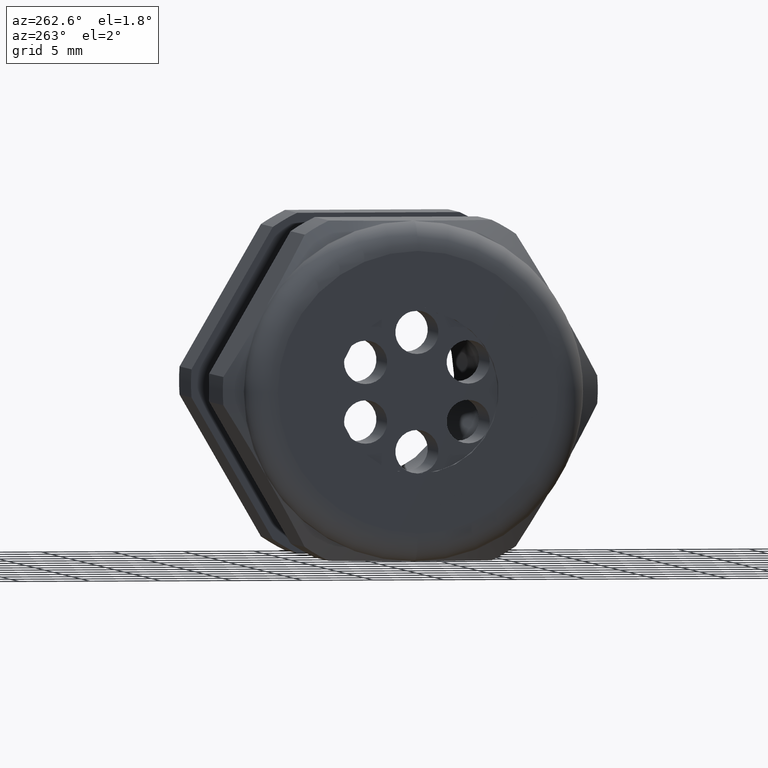
[diagram: clean part render]
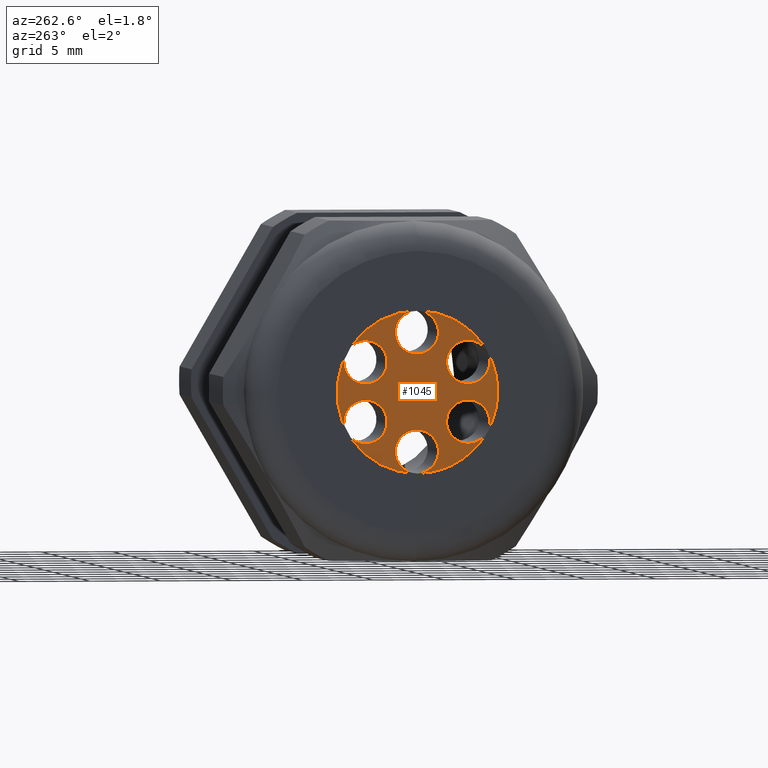
[diagram: same view with one face highlighted and labeled with its STEP entity id]
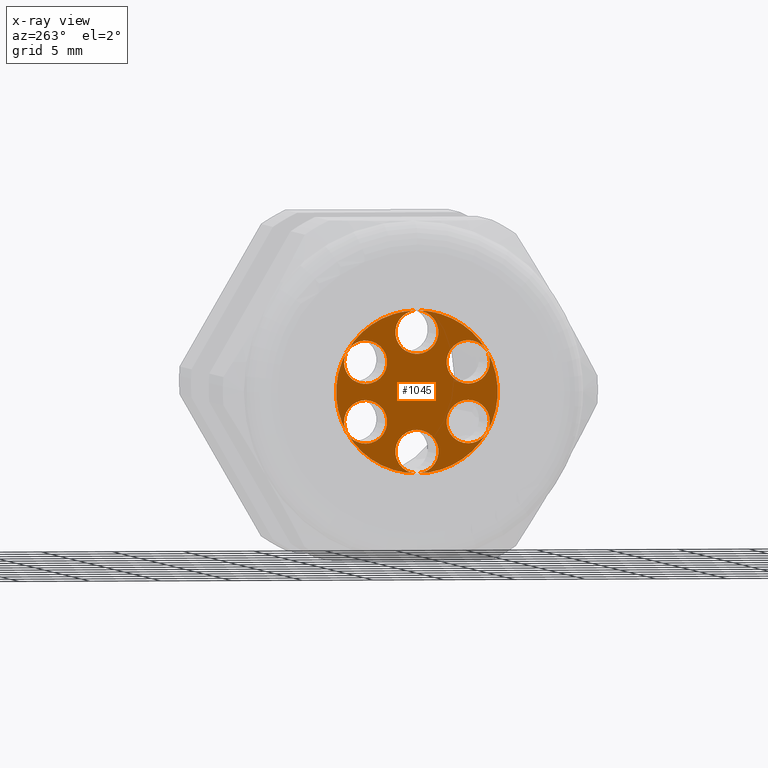
[diagram: x-ray of the same camera — body ghosted, the highlighted face saturated]
A machine part, auxiliary view. The second image highlights one B-rep face of the part: STEP entity #1045.
The next image is the same camera in x-ray: the body ghosted, the highlighted face saturated — about 0% of this face is hidden behind the body in this view.
In plain terms, the highlighted planar face has unit normal (-1, 0, 0).
Its self-contained STEP definition (entity closure, byte-faithful):
#876 = VERTEX_POINT ( 'NONE', #2725 ) ;
#880 = VERTEX_POINT ( 'NONE', #2716 ) ;
#886 = EDGE_CURVE ( 'NONE', #876, #880, #2768, .T. ) ;
#918 = EDGE_CURVE ( 'NONE', #919, #939, #2771, .T. ) ;
#919 = VERTEX_POINT ( 'NONE', #2831 ) ;
#924 = VERTEX_POINT ( 'NONE', #2818 ) ;
#933 = EDGE_CURVE ( 'NONE', #924, #934, #2807, .T. ) ;
#934 = VERTEX_POINT ( 'NONE', #2866 ) ;
#939 = VERTEX_POINT ( 'NONE', #2855 ) ;
#944 = EDGE_CURVE ( 'NONE', #953, #946, #2842, .T. ) ;
#946 = VERTEX_POINT ( 'NONE', #2895 ) ;
#953 = VERTEX_POINT ( 'NONE', #2884 ) ;
#962 = VERTEX_POINT ( 'NONE', #2869 ) ;
#966 = VERTEX_POINT ( 'NONE', #2927 ) ;
#967 = VERTEX_POINT ( 'NONE', #2926 ) ;
#969 = EDGE_CURVE ( 'NONE', #966, #967, #2924, .T. ) ;
#980 = EDGE_CURVE ( 'NONE', #962, #981, #2901, .T. ) ;
#981 = VERTEX_POINT ( 'NONE', #2959 ) ;
#984 = VERTEX_POINT ( 'NONE', #2954 ) ;
#985 = EDGE_CURVE ( 'NONE', #984, #998, #2953, .T. ) ;
#998 = VERTEX_POINT ( 'NONE', #2989 ) ;
#1039 = EDGE_LOOP ( 'NONE', ( #1042, #1115 ) ) ;
#1040 = ORIENTED_EDGE ( 'NONE', *, *, #985, .F. ) ;
#1041 = EDGE_LOOP ( 'NONE', ( #1112, #1040 ) ) ;
#1042 = ORIENTED_EDGE ( 'NONE', *, *, #1114, .F. ) ;
#1043 = ORIENTED_EDGE ( 'NONE', *, *, #1044, .F. ) ;
#1044 = EDGE_CURVE ( 'NONE', #880, #876, #3006, .T. ) ;
#1045 = ADVANCED_FACE ( 'NONE', ( #3001, #3000, #2999, #2998, #2997, #2996, #2995 ), #3058, .T. ) ;
#1046 = EDGE_CURVE ( 'NONE', #998, #984, #3053, .T. ) ;
#1047 = EDGE_CURVE ( 'NONE', #967, #966, #3048, .T. ) ;
#1048 = ORIENTED_EDGE ( 'NONE', *, *, #969, .F. ) ;
#1049 = EDGE_LOOP ( 'NONE', ( #1043, #1184 ) ) ;
#1074 = EDGE_CURVE ( 'NONE', #939, #919, #3536, .T. ) ;
#1112 = ORIENTED_EDGE ( 'NONE', *, *, #1046, .F. ) ;
#1113 = EDGE_LOOP ( 'NONE', ( #1116, #1048 ) ) ;
#1114 = EDGE_CURVE ( 'NONE', #981, #962, #3599, .T. ) ;
#1115 = ORIENTED_EDGE ( 'NONE', *, *, #980, .F. ) ;
#1116 = ORIENTED_EDGE ( 'NONE', *, *, #1047, .F. ) ;
#1117 = ORIENTED_EDGE ( 'NONE', *, *, #1118, .F. ) ;
#1118 = EDGE_CURVE ( 'NONE', #934, #924, #3594, .T. ) ;
#1119 = ORIENTED_EDGE ( 'NONE', *, *, #933, .F. ) ;
#1120 = EDGE_LOOP ( 'NONE', ( #1121, #1122 ) ) ;
#1121 = ORIENTED_EDGE ( 'NONE', *, *, #1074, .T. ) ;
#1122 = ORIENTED_EDGE ( 'NONE', *, *, #918, .T. ) ;
#1124 = EDGE_CURVE ( 'NONE', #946, #953, #3582, .T. ) ;
#1125 = ORIENTED_EDGE ( 'NONE', *, *, #944, .F. ) ;
#1184 = ORIENTED_EDGE ( 'NONE', *, *, #886, .F. ) ;
#1185 = ORIENTED_EDGE ( 'NONE', *, *, #1124, .F. ) ;
#1186 = EDGE_LOOP ( 'NONE', ( #1117, #1119 ) ) ;
#1187 = EDGE_LOOP ( 'NONE', ( #1185, #1125 ) ) ;
#2709 = CARTESIAN_POINT ( 'NONE',  ( -1.389999999999999900, -0.1426863455275237400, 0.08238000000000067500 ) ) ;
#2716 = CARTESIAN_POINT ( 'NONE',  ( -1.389999999999999900, -0.1426863455275237400, 0.1423800000000007000 ) ) ;
#2725 = CARTESIAN_POINT ( 'NONE',  ( -1.389999999999999900, -0.1426863455275237400, 0.02238000000000066300 ) ) ;
#2765 = DIRECTION ( 'NONE',  ( 0.0000000000000000000, 0.8660254037844362700, -0.5000000000000041100 ) ) ;
#2766 = DIRECTION ( 'NONE',  ( -1.000000000000000000, 0.0000000000000000000, 0.0000000000000000000 ) ) ;
#2767 = AXIS2_PLACEMENT_3D ( 'NONE', #2709, #2766, #2765 ) ;
#2768 = CIRCLE ( 'NONE', #2767, 0.06000000000000002600 ) ;
#2771 = CIRCLE ( 'NONE', #2835, 0.2249999999999999800 ) ;
#2803 = DIRECTION ( 'NONE',  ( 0.0000000000000000000, 0.0000000000000000000, 1.000000000000000000 ) ) ;
#2804 = DIRECTION ( 'NONE',  ( -1.000000000000000000, 0.0000000000000000000, 0.0000000000000000000 ) ) ;
#2805 = CARTESIAN_POINT ( 'NONE',  ( -1.389999999999999900, 0.0000000000000000000, -0.1647599999999999900 ) ) ;
#2806 = AXIS2_PLACEMENT_3D ( 'NONE', #2805, #2804, #2803 ) ;
#2807 = CIRCLE ( 'NONE', #2806, 0.06000000000000001200 ) ;
#2818 = CARTESIAN_POINT ( 'NONE',  ( -1.389999999999999900, 7.347880794884123000E-018, -0.2247600000000000400 ) ) ;
#2831 = CARTESIAN_POINT ( 'NONE',  ( -1.389999999999999900, 2.755455298081544500E-017, -0.2249999999999999800 ) ) ;
#2832 = DIRECTION ( 'NONE',  ( 0.0000000000000000000, 0.0000000000000000000, 1.000000000000000000 ) ) ;
#2833 = DIRECTION ( 'NONE',  ( -1.000000000000000000, 0.0000000000000000000, 0.0000000000000000000 ) ) ;
#2834 = CARTESIAN_POINT ( 'NONE',  ( -1.389999999999999900, 0.0000000000000000000, 0.0000000000000000000 ) ) ;
#2835 = AXIS2_PLACEMENT_3D ( 'NONE', #2834, #2833, #2832 ) ;
#2839 = DIRECTION ( 'NONE',  ( 0.0000000000000000000, 0.8660254037844398200, 0.4999999999999980000 ) ) ;
#2840 = DIRECTION ( 'NONE',  ( -1.000000000000000000, 0.0000000000000000000, 0.0000000000000000000 ) ) ;
#2841 = AXIS2_PLACEMENT_3D ( 'NONE', #2847, #2840, #2839 ) ;
#2842 = CIRCLE ( 'NONE', #2841, 0.06000000000000001200 ) ;
#2847 = CARTESIAN_POINT ( 'NONE',  ( -1.389999999999999900, -0.1426863455275242900, -0.08237999999999967600 ) ) ;
#2855 = CARTESIAN_POINT ( 'NONE',  ( -1.389999999999999900, 0.0000000000000000000, 0.2249999999999999800 ) ) ;
#2866 = CARTESIAN_POINT ( 'NONE',  ( -1.389999999999999900, 0.0000000000000000000, -0.1047599999999999800 ) ) ;
#2869 = CARTESIAN_POINT ( 'NONE',  ( -1.389999999999999900, 0.1426863455275248800, 0.02237999999999864100 ) ) ;
#2884 = CARTESIAN_POINT ( 'NONE',  ( -1.389999999999999900, -0.1426863455275242900, -0.1423799999999997000 ) ) ;
#2895 = CARTESIAN_POINT ( 'NONE',  ( -1.389999999999999900, -0.1426863455275242900, -0.02237999999999965400 ) ) ;
#2897 = DIRECTION ( 'NONE',  ( 0.0000000000000000000, -0.8660254037844432600, -0.4999999999999919500 ) ) ;
#2898 = DIRECTION ( 'NONE',  ( -1.000000000000000000, 0.0000000000000000000, 0.0000000000000000000 ) ) ;
#2899 = CARTESIAN_POINT ( 'NONE',  ( -1.389999999999999900, 0.1426863455275248800, 0.08237999999999866300 ) ) ;
#2900 = AXIS2_PLACEMENT_3D ( 'NONE', #2899, #2898, #2897 ) ;
#2901 = CIRCLE ( 'NONE', #2900, 0.06000000000000001900 ) ;
#2920 = DIRECTION ( 'NONE',  ( 0.0000000000000000000, -6.982966722218764900E-015, -1.000000000000000000 ) ) ;
#2921 = DIRECTION ( 'NONE',  ( -1.000000000000000000, 0.0000000000000000000, 0.0000000000000000000 ) ) ;
#2922 = CARTESIAN_POINT ( 'NONE',  ( -1.389999999999999900, 1.150513597152763700E-015, 0.1647599999999999900 ) ) ;
#2923 = AXIS2_PLACEMENT_3D ( 'NONE', #2922, #2921, #2920 ) ;
#2924 = CIRCLE ( 'NONE', #2923, 0.06000000000000001200 ) ;
#2926 = CARTESIAN_POINT ( 'NONE',  ( -1.389999999999999900, 1.150513597152763700E-015, 0.2247600000000000400 ) ) ;
#2927 = CARTESIAN_POINT ( 'NONE',  ( -1.389999999999999900, 1.157861477947647800E-015, 0.1047599999999999600 ) ) ;
#2949 = DIRECTION ( 'NONE',  ( 0.0000000000000000000, -0.8660254037844328200, 0.5000000000000102100 ) ) ;
#2950 = DIRECTION ( 'NONE',  ( -1.000000000000000000, 0.0000000000000000000, 0.0000000000000000000 ) ) ;
#2951 = CARTESIAN_POINT ( 'NONE',  ( -1.389999999999999900, 0.1426863455275231600, -0.08238000000000164600 ) ) ;
#2952 = AXIS2_PLACEMENT_3D ( 'NONE', #2951, #2950, #2949 ) ;
#2953 = CIRCLE ( 'NONE', #2952, 0.06000000000000001200 ) ;
#2954 = CARTESIAN_POINT ( 'NONE',  ( -1.389999999999999900, 0.1426863455275231600, -0.1423800000000016700 ) ) ;
#2959 = CARTESIAN_POINT ( 'NONE',  ( -1.389999999999999900, 0.1426863455275248800, 0.1423799999999987000 ) ) ;
#2989 = CARTESIAN_POINT ( 'NONE',  ( -1.389999999999999900, 0.1426863455275231600, -0.02238000000000163500 ) ) ;
#2995 = FACE_OUTER_BOUND ( 'NONE', #1120, .T. ) ;
#2996 = FACE_BOUND ( 'NONE', #1186, .T. ) ;
#2997 = FACE_BOUND ( 'NONE', #1187, .T. ) ;
#2998 = FACE_BOUND ( 'NONE', #1049, .T. ) ;
#2999 = FACE_BOUND ( 'NONE', #1113, .T. ) ;
#3000 = FACE_BOUND ( 'NONE', #1039, .T. ) ;
#3001 = FACE_BOUND ( 'NONE', #1041, .T. ) ;
#3002 = DIRECTION ( 'NONE',  ( 0.0000000000000000000, 0.8660254037844362700, -0.5000000000000041100 ) ) ;
#3003 = DIRECTION ( 'NONE',  ( -1.000000000000000000, 0.0000000000000000000, 0.0000000000000000000 ) ) ;
#3004 = CARTESIAN_POINT ( 'NONE',  ( -1.389999999999999900, -0.1426863455275237400, 0.08238000000000067500 ) ) ;
#3005 = AXIS2_PLACEMENT_3D ( 'NONE', #3004, #3003, #3002 ) ;
#3006 = CIRCLE ( 'NONE', #3005, 0.06000000000000002600 ) ;
#3044 = DIRECTION ( 'NONE',  ( 0.0000000000000000000, -6.982966722218764900E-015, -1.000000000000000000 ) ) ;
#3045 = DIRECTION ( 'NONE',  ( -1.000000000000000000, 0.0000000000000000000, 0.0000000000000000000 ) ) ;
#3046 = CARTESIAN_POINT ( 'NONE',  ( -1.389999999999999900, 1.150513597152763700E-015, 0.1647599999999999900 ) ) ;
#3047 = AXIS2_PLACEMENT_3D ( 'NONE', #3046, #3045, #3044 ) ;
#3048 = CIRCLE ( 'NONE', #3047, 0.06000000000000001200 ) ;
#3049 = DIRECTION ( 'NONE',  ( 0.0000000000000000000, -0.8660254037844328200, 0.5000000000000102100 ) ) ;
#3050 = DIRECTION ( 'NONE',  ( -1.000000000000000000, 0.0000000000000000000, 0.0000000000000000000 ) ) ;
#3051 = CARTESIAN_POINT ( 'NONE',  ( -1.389999999999999900, 0.1426863455275231600, -0.08238000000000164600 ) ) ;
#3052 = AXIS2_PLACEMENT_3D ( 'NONE', #3051, #3050, #3049 ) ;
#3053 = CIRCLE ( 'NONE', #3052, 0.06000000000000001200 ) ;
#3054 = DIRECTION ( 'NONE',  ( 0.0000000000000000000, 0.0000000000000000000, 1.000000000000000000 ) ) ;
#3055 = DIRECTION ( 'NONE',  ( -1.000000000000000000, 0.0000000000000000000, 0.0000000000000000000 ) ) ;
#3056 = CARTESIAN_POINT ( 'NONE',  ( -1.389999999999999900, 0.0000000000000000000, 0.0000000000000000000 ) ) ;
#3057 = AXIS2_PLACEMENT_3D ( 'NONE', #3056, #3055, #3054 ) ;
#3058 = PLANE ( 'NONE',  #3057 ) ;
#3532 = DIRECTION ( 'NONE',  ( 0.0000000000000000000, 0.0000000000000000000, 1.000000000000000000 ) ) ;
#3533 = DIRECTION ( 'NONE',  ( -1.000000000000000000, 0.0000000000000000000, 0.0000000000000000000 ) ) ;
#3534 = CARTESIAN_POINT ( 'NONE',  ( -1.389999999999999900, 0.0000000000000000000, 0.0000000000000000000 ) ) ;
#3535 = AXIS2_PLACEMENT_3D ( 'NONE', #3534, #3533, #3532 ) ;
#3536 = CIRCLE ( 'NONE', #3535, 0.2249999999999999800 ) ;
#3579 = DIRECTION ( 'NONE',  ( 0.0000000000000000000, 0.8660254037844398200, 0.4999999999999980000 ) ) ;
#3580 = DIRECTION ( 'NONE',  ( -1.000000000000000000, 0.0000000000000000000, 0.0000000000000000000 ) ) ;
#3581 = AXIS2_PLACEMENT_3D ( 'NONE', #3587, #3580, #3579 ) ;
#3582 = CIRCLE ( 'NONE', #3581, 0.06000000000000001200 ) ;
#3587 = CARTESIAN_POINT ( 'NONE',  ( -1.389999999999999900, -0.1426863455275242900, -0.08237999999999967600 ) ) ;
#3590 = DIRECTION ( 'NONE',  ( 0.0000000000000000000, 0.0000000000000000000, 1.000000000000000000 ) ) ;
#3591 = DIRECTION ( 'NONE',  ( -1.000000000000000000, 0.0000000000000000000, 0.0000000000000000000 ) ) ;
#3592 = CARTESIAN_POINT ( 'NONE',  ( -1.389999999999999900, 0.0000000000000000000, -0.1647599999999999900 ) ) ;
#3593 = AXIS2_PLACEMENT_3D ( 'NONE', #3592, #3591, #3590 ) ;
#3594 = CIRCLE ( 'NONE', #3593, 0.06000000000000001200 ) ;
#3595 = DIRECTION ( 'NONE',  ( 0.0000000000000000000, -0.8660254037844432600, -0.4999999999999919500 ) ) ;
#3596 = DIRECTION ( 'NONE',  ( -1.000000000000000000, 0.0000000000000000000, 0.0000000000000000000 ) ) ;
#3597 = CARTESIAN_POINT ( 'NONE',  ( -1.389999999999999900, 0.1426863455275248800, 0.08237999999999866300 ) ) ;
#3598 = AXIS2_PLACEMENT_3D ( 'NONE', #3597, #3596, #3595 ) ;
#3599 = CIRCLE ( 'NONE', #3598, 0.06000000000000001900 ) ;